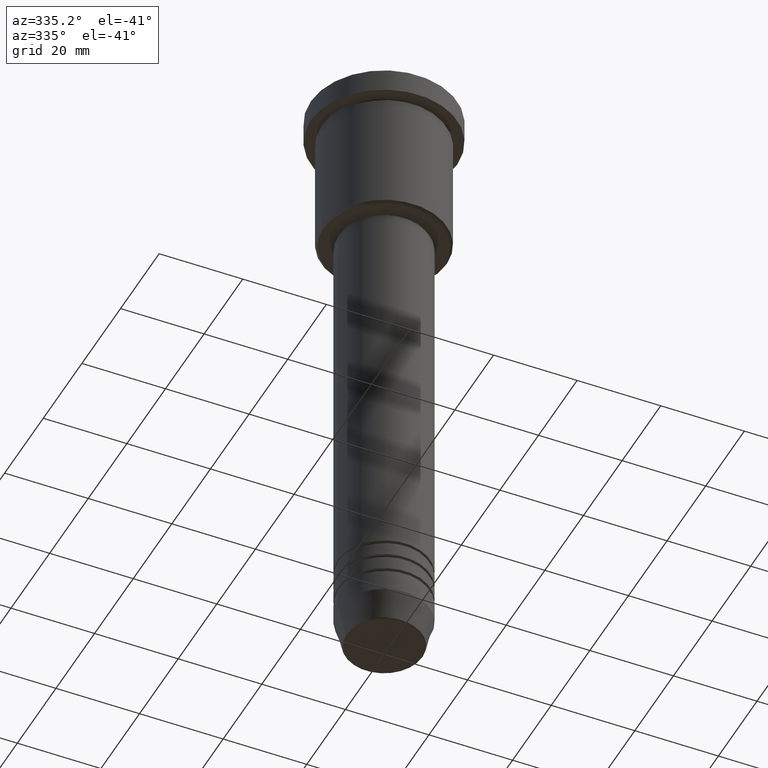
[diagram: clean part render]
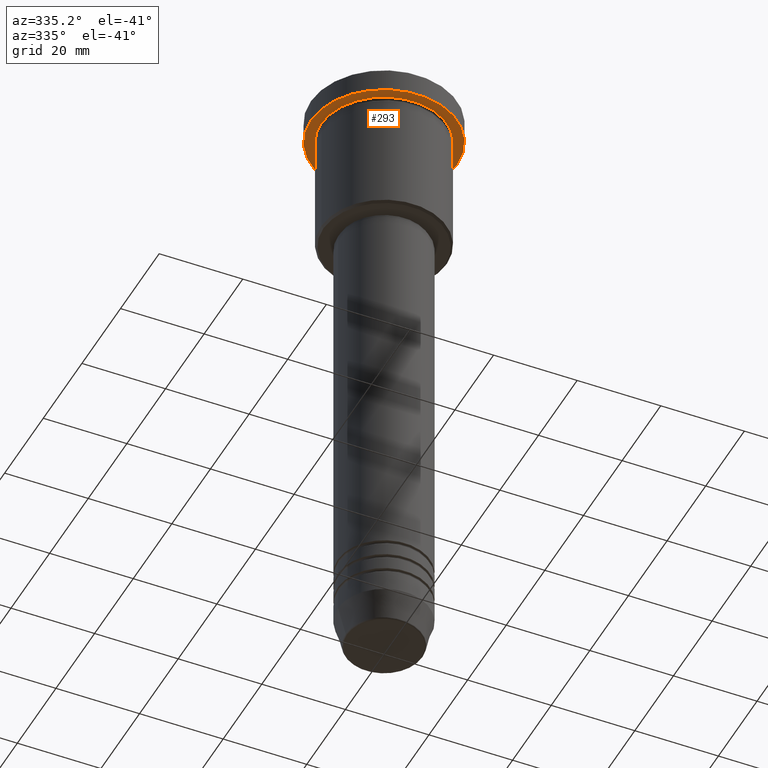
[diagram: same view with one face highlighted and labeled with its STEP entity id]
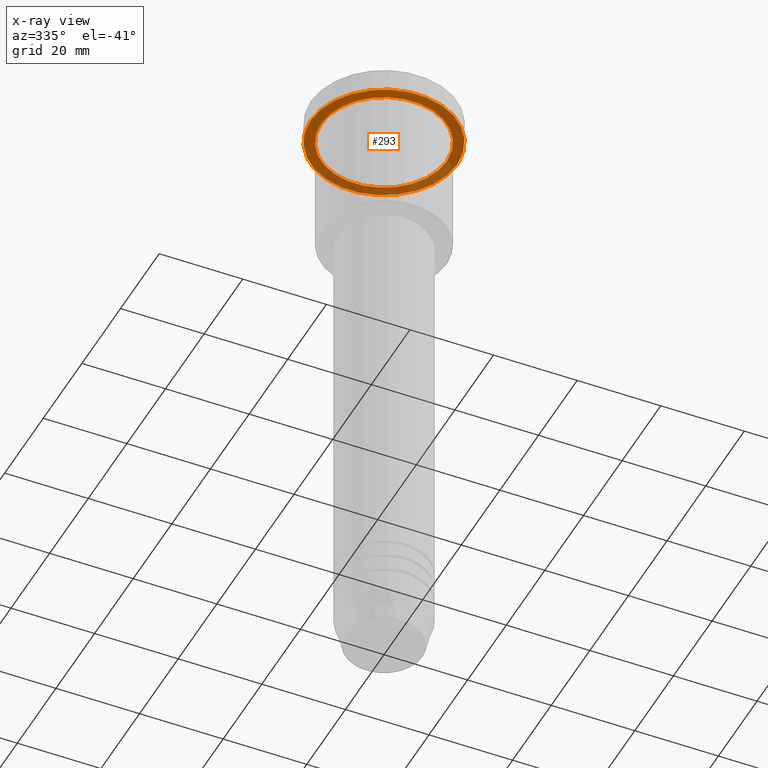
[diagram: x-ray of the same camera — body ghosted, the highlighted face saturated]
A machine part, auxiliary view. The second image highlights one B-rep face of the part: STEP entity #293.
The next image is the same camera in x-ray: the body ghosted, the highlighted face saturated — about 35% of this face is hidden behind the body in this view.
In plain terms, the highlighted planar face has unit normal (0, 0, -1).
Its self-contained STEP definition (entity closure, byte-faithful):
#16 = DIRECTION ( 'NONE',  ( 0.000000000000000000, 0.000000000000000000, -1.000000000000000000 ) ) ;
#44 = AXIS2_PLACEMENT_3D ( 'NONE', #537, #909, #272 ) ;
#84 = AXIS2_PLACEMENT_3D ( 'NONE', #1031, #473, #386 ) ;
#111 = DIRECTION ( 'NONE',  ( -0.000000000000000000, -0.000000000000000000, 1.000000000000000000 ) ) ;
#120 = CIRCLE ( 'NONE', #811, 15.00000000000000000 ) ;
#150 = VERTEX_POINT ( 'NONE', #515 ) ;
#221 = ORIENTED_EDGE ( 'NONE', *, *, #736, .T. ) ;
#272 = DIRECTION ( 'NONE',  ( -1.000000000000000000, 0.000000000000000000, 0.000000000000000000 ) ) ;
#285 = FACE_OUTER_BOUND ( 'NONE', #689, .T. ) ;
#293 = ADVANCED_FACE ( 'NONE', ( #845, #285 ), #1024, .T. ) ;
#300 = CARTESIAN_POINT ( 'NONE',  ( 17.50000000000000000, 0.000000000000000000, -5.999999999999995559 ) ) ;
#312 = EDGE_CURVE ( 'NONE', #686, #150, #1014, .T. ) ;
#347 = ORIENTED_EDGE ( 'NONE', *, *, #1110, .F. ) ;
#370 = ORIENTED_EDGE ( 'NONE', *, *, #430, .T. ) ;
#386 = DIRECTION ( 'NONE',  ( 1.000000000000000000, 0.000000000000000000, 0.000000000000000000 ) ) ;
#430 = EDGE_CURVE ( 'NONE', #1123, #959, #718, .T. ) ;
#473 = DIRECTION ( 'NONE',  ( -0.000000000000000000, -0.000000000000000000, 1.000000000000000000 ) ) ;
#515 = CARTESIAN_POINT ( 'NONE',  ( -17.50000000000000000, 2.143131898507868248E-15, -5.999999999999995559 ) ) ;
#537 = CARTESIAN_POINT ( 'NONE',  ( 0.000000000000000000, 0.000000000000000000, -5.999999999999995559 ) ) ;
#552 = CARTESIAN_POINT ( 'NONE',  ( 0.000000000000000000, 0.000000000000000000, -5.999999999999995559 ) ) ;
#559 = CARTESIAN_POINT ( 'NONE',  ( 0.000000000000000000, 0.000000000000000000, -5.999999999999995559 ) ) ;
#589 = ORIENTED_EDGE ( 'NONE', *, *, #312, .F. ) ;
#638 = DIRECTION ( 'NONE',  ( -1.000000000000000000, 0.000000000000000000, 0.000000000000000000 ) ) ;
#652 = DIRECTION ( 'NONE',  ( -1.000000000000000000, 0.000000000000000000, -0.000000000000000000 ) ) ;
#686 = VERTEX_POINT ( 'NONE', #300 ) ;
#689 = EDGE_LOOP ( 'NONE', ( #589, #347 ) ) ;
#718 = CIRCLE ( 'NONE', #44, 15.00000000000000000 ) ;
#719 = CIRCLE ( 'NONE', #869, 17.50000000000000000 ) ;
#734 = DIRECTION ( 'NONE',  ( 1.000000000000000000, 0.000000000000000000, 0.000000000000000000 ) ) ;
#736 = EDGE_CURVE ( 'NONE', #959, #1123, #120, .T. ) ;
#751 = AXIS2_PLACEMENT_3D ( 'NONE', #835, #16, #652 ) ;
#811 = AXIS2_PLACEMENT_3D ( 'NONE', #559, #934, #638 ) ;
#826 = CARTESIAN_POINT ( 'NONE',  ( 15.00000000000000000, 1.836970198721029589E-15, -5.999999999999994671 ) ) ;
#835 = CARTESIAN_POINT ( 'NONE',  ( 0.000000000000000000, 17.50000000000000000, -5.999999999999995559 ) ) ;
#845 = FACE_BOUND ( 'NONE', #953, .T. ) ;
#869 = AXIS2_PLACEMENT_3D ( 'NONE', #552, #111, #734 ) ;
#909 = DIRECTION ( 'NONE',  ( -0.000000000000000000, -0.000000000000000000, 1.000000000000000000 ) ) ;
#934 = DIRECTION ( 'NONE',  ( -0.000000000000000000, -0.000000000000000000, 1.000000000000000000 ) ) ;
#953 = EDGE_LOOP ( 'NONE', ( #221, #370 ) ) ;
#959 = VERTEX_POINT ( 'NONE', #1049 ) ;
#1014 = CIRCLE ( 'NONE', #84, 17.50000000000000000 ) ;
#1024 = PLANE ( 'NONE',  #751 ) ;
#1031 = CARTESIAN_POINT ( 'NONE',  ( 0.000000000000000000, 0.000000000000000000, -5.999999999999995559 ) ) ;
#1049 = CARTESIAN_POINT ( 'NONE',  ( -15.00000000000000000, 0.000000000000000000, -5.999999999999994671 ) ) ;
#1110 = EDGE_CURVE ( 'NONE', #150, #686, #719, .T. ) ;
#1123 = VERTEX_POINT ( 'NONE', #826 ) ;